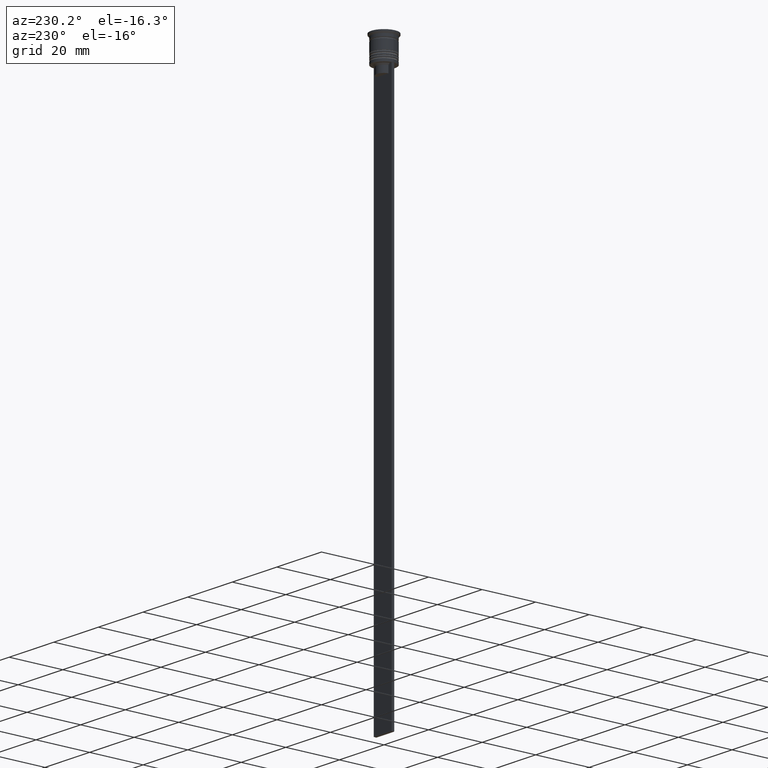
[diagram: clean part render]
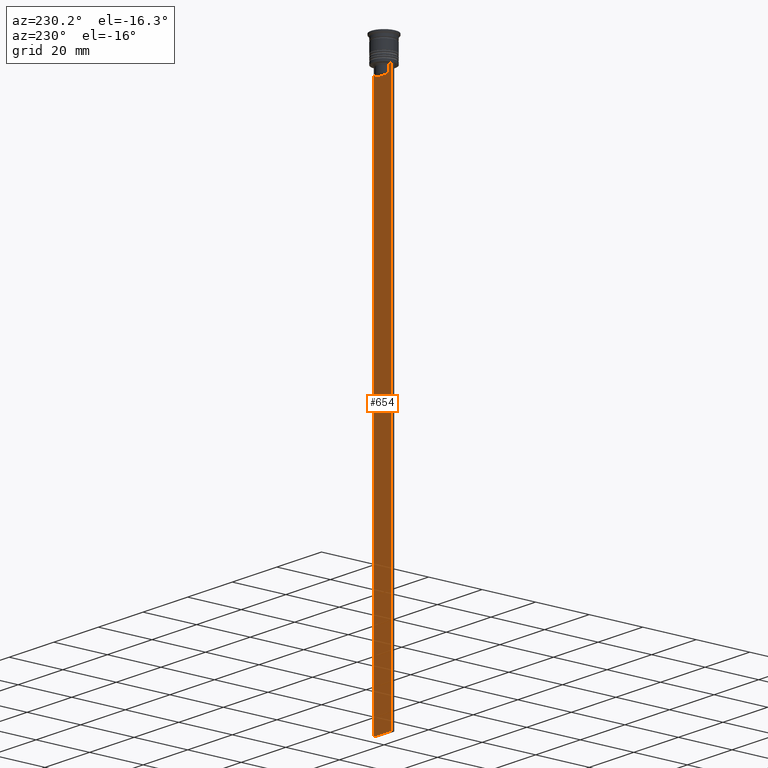
[diagram: same view with one face highlighted and labeled with its STEP entity id]
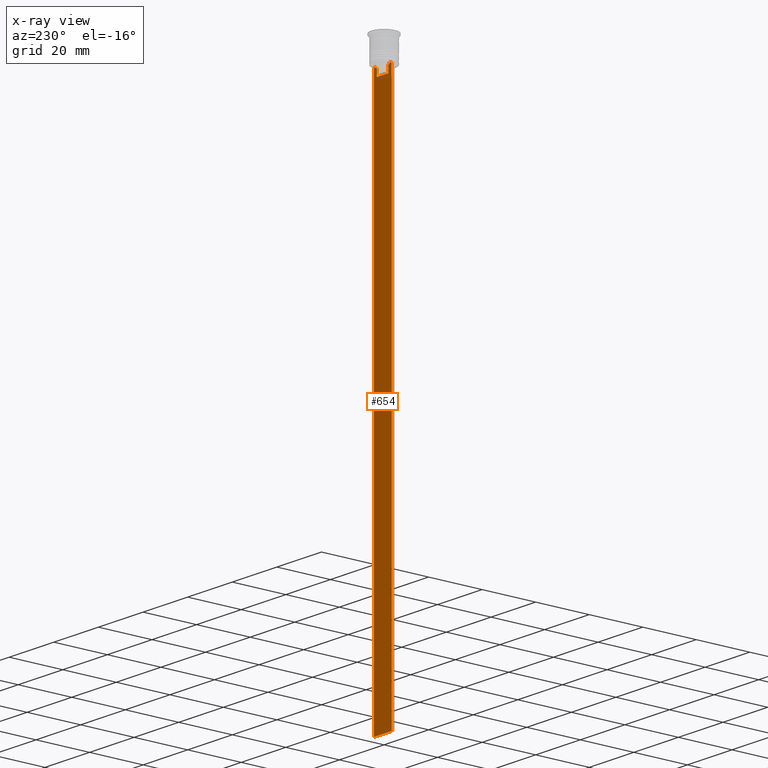
[diagram: x-ray of the same camera — body ghosted, the highlighted face saturated]
A machine part, auxiliary view. The second image highlights one B-rep face of the part: STEP entity #654.
The next image is the same camera in x-ray: the body ghosted, the highlighted face saturated — about 0% of this face is hidden behind the body in this view.
In plain terms, the highlighted planar face has unit normal (0, -1, -0).
Its self-contained STEP definition (entity closure, byte-faithful):
#8 = VERTEX_POINT ( 'NONE', #121 ) ;
#45 = ORIENTED_EDGE ( 'NONE', *, *, #1494, .T. ) ;
#53 = LINE ( 'NONE', #91, #458 ) ;
#75 = ORIENTED_EDGE ( 'NONE', *, *, #1886, .T. ) ;
#76 = ORIENTED_EDGE ( 'NONE', *, *, #974, .T. ) ;
#91 = CARTESIAN_POINT ( 'NONE',  ( 2.602402735934617350, 0.4999999999999995559, 0.000000000000000000 ) ) ;
#110 = EDGE_CURVE ( 'NONE', #775, #828, #867, .T. ) ;
#121 = CARTESIAN_POINT ( 'NONE',  ( 4.000000000000005329, 0.4999999999999995559, -209.5000000000000284 ) ) ;
#139 = VECTOR ( 'NONE', #1841, 1000.000000000000000 ) ;
#150 = CARTESIAN_POINT ( 'NONE',  ( 2.602402735934617350, 0.4999999999999995559, -10.00000000000000178 ) ) ;
#154 = DIRECTION ( 'NONE',  ( 0.000000000000000000, 0.000000000000000000, -1.000000000000000000 ) ) ;
#169 = CARTESIAN_POINT ( 'NONE',  ( -2.941047749529105193, 0.4999999999999995559, -9.666873766989334982 ) ) ;
#177 = CARTESIAN_POINT ( 'NONE',  ( -3.999999999999994671, 0.4999999999999995559, -1.437742251701450202 ) ) ;
#201 = CARTESIAN_POINT ( 'NONE',  ( 4.000000000000005329, 0.4999999999999995559, -1.437742251701450202 ) ) ;
#272 = ORIENTED_EDGE ( 'NONE', *, *, #1306, .T. ) ;
#294 = CARTESIAN_POINT ( 'NONE',  ( 2.602402735934617350, 0.4999999999999995559, -10.00000000000000178 ) ) ;
#302 = CARTESIAN_POINT ( 'NONE',  ( 2.771864055700302476, 0.4999999999999995559, -9.833582414266677674 ) ) ;
#319 = CARTESIAN_POINT ( 'NONE',  ( -2.602402735934617350, 0.4999999999999995559, 0.000000000000000000 ) ) ;
#324 = CARTESIAN_POINT ( 'NONE',  ( -2.771866350855961780, 0.4999999999999995559, -9.833580160334840059 ) ) ;
#327 = VECTOR ( 'NONE', #2303, 1000.000000000000000 ) ;
#370 = VECTOR ( 'NONE', #1014, 1000.000000000000000 ) ;
#448 = EDGE_CURVE ( 'NONE', #1890, #1342, #53, .T. ) ;
#458 = VECTOR ( 'NONE', #823, 1000.000000000000000 ) ;
#493 = CARTESIAN_POINT ( 'NONE',  ( 3.110064308016796897, 0.4999999999999995559, -9.500000000000000000 ) ) ;
#548 = DIRECTION ( 'NONE',  ( 0.000000000000000000, 0.000000000000000000, -1.000000000000000000 ) ) ;
#554 = VERTEX_POINT ( 'NONE', #1223 ) ;
#570 = LINE ( 'NONE', #1748, #370 ) ;
#578 = ORIENTED_EDGE ( 'NONE', *, *, #1669, .T. ) ;
#592 = CARTESIAN_POINT ( 'NONE',  ( 4.000000000000005329, 0.4999999999999995559, -9.500000000000000000 ) ) ;
#628 = VECTOR ( 'NONE', #2368, 1000.000000000000000 ) ;
#645 = ORIENTED_EDGE ( 'NONE', *, *, #110, .T. ) ;
#654 = ADVANCED_FACE ( 'NONE', ( #1104 ), #1670, .F. ) ;
#661 = CARTESIAN_POINT ( 'NONE',  ( 2.941045828809989438, 0.4999999999999995559, -9.666875663357577864 ) ) ;
#685 = VERTEX_POINT ( 'NONE', #592 ) ;
#718 = LINE ( 'NONE', #1985, #2211 ) ;
#770 = ORIENTED_EDGE ( 'NONE', *, *, #2042, .F. ) ;
#775 = VERTEX_POINT ( 'NONE', #1649 ) ;
#804 = VECTOR ( 'NONE', #1605, 1000.000000000000000 ) ;
#814 = LINE ( 'NONE', #2155, #327 ) ;
#823 = DIRECTION ( 'NONE',  ( -0.000000000000000000, -0.000000000000000000, 1.000000000000000000 ) ) ;
#828 = VERTEX_POINT ( 'NONE', #2290 ) ;
#867 = B_SPLINE_CURVE_WITH_KNOTS ( 'NONE', 3,
 ( #889, #169, #324, #2317 ),
 .UNSPECIFIED., .F., .F.,
 ( 4, 4 ),
 ( 0.005378271293598279809, 0.006090816219555997280 ),
 .UNSPECIFIED. ) ;
#876 = ORIENTED_EDGE ( 'NONE', *, *, #448, .T. ) ;
#889 = CARTESIAN_POINT ( 'NONE',  ( -3.110064308016796897, 0.4999999999999995559, -9.500000000000000000 ) ) ;
#929 = CARTESIAN_POINT ( 'NONE',  ( -2.602402735934617350, 0.4999999999999995559, -12.50000000000000000 ) ) ;
#974 = EDGE_CURVE ( 'NONE', #828, #2242, #1591, .T. ) ;
#1014 = DIRECTION ( 'NONE',  ( 1.000000000000000000, 0.000000000000000000, 0.000000000000000000 ) ) ;
#1104 = FACE_OUTER_BOUND ( 'NONE', #2231, .T. ) ;
#1173 = CARTESIAN_POINT ( 'NONE',  ( -3.999999999999994671, 0.4999999999999997780, -9.500000000000000000 ) ) ;
#1223 = CARTESIAN_POINT ( 'NONE',  ( 3.110064308016796897, 0.4999999999999995559, -9.500000000000000000 ) ) ;
#1306 = EDGE_CURVE ( 'NONE', #1342, #554, #1787, .T. ) ;
#1319 = CARTESIAN_POINT ( 'NONE',  ( 4.000000000000005329, 0.4999999999999995559, -209.5000000000000284 ) ) ;
#1342 = VERTEX_POINT ( 'NONE', #294 ) ;
#1431 = LINE ( 'NONE', #177, #2284 ) ;
#1468 = CARTESIAN_POINT ( 'NONE',  ( 0.000000000000000000, 0.4999999999999995559, -12.50000000000000000 ) ) ;
#1477 = LINE ( 'NONE', #1468, #628 ) ;
#1494 = EDGE_CURVE ( 'NONE', #685, #8, #814, .T. ) ;
#1495 = AXIS2_PLACEMENT_3D ( 'NONE', #201, #1681, #548 ) ;
#1591 = LINE ( 'NONE', #319, #804 ) ;
#1601 = ORIENTED_EDGE ( 'NONE', *, *, #1685, .T. ) ;
#1605 = DIRECTION ( 'NONE',  ( 0.000000000000000000, 0.000000000000000000, -1.000000000000000000 ) ) ;
#1649 = CARTESIAN_POINT ( 'NONE',  ( -3.110064308016796897, 0.4999999999999995559, -9.500000000000000000 ) ) ;
#1660 = LINE ( 'NONE', #1319, #139 ) ;
#1669 = EDGE_CURVE ( 'NONE', #554, #685, #718, .T. ) ;
#1670 = PLANE ( 'NONE',  #1495 ) ;
#1681 = DIRECTION ( 'NONE',  ( 0.000000000000000000, -1.000000000000000000, -0.000000000000000000 ) ) ;
#1685 = EDGE_CURVE ( 'NONE', #2242, #1890, #1477, .T. ) ;
#1744 = CARTESIAN_POINT ( 'NONE',  ( -3.999999999999994671, 0.4999999999999995559, -209.5000000000000284 ) ) ;
#1748 = CARTESIAN_POINT ( 'NONE',  ( 4.000000000000005329, 0.4999999999999995559, -9.500000000000000000 ) ) ;
#1787 = B_SPLINE_CURVE_WITH_KNOTS ( 'NONE', 3,
 ( #150, #302, #661, #493 ),
 .UNSPECIFIED., .F., .F.,
 ( 4, 4 ),
 ( 0.01295151922336847637, 0.01367164596165162602 ),
 .UNSPECIFIED. ) ;
#1841 = DIRECTION ( 'NONE',  ( -1.000000000000000000, 0.000000000000000000, 0.000000000000000000 ) ) ;
#1886 = EDGE_CURVE ( 'NONE', #2373, #775, #570, .T. ) ;
#1890 = VERTEX_POINT ( 'NONE', #2270 ) ;
#1985 = CARTESIAN_POINT ( 'NONE',  ( 4.000000000000005329, 0.4999999999999995559, -9.500000000000000000 ) ) ;
#2042 = EDGE_CURVE ( 'NONE', #2373, #2304, #1431, .T. ) ;
#2155 = CARTESIAN_POINT ( 'NONE',  ( 4.000000000000005329, 0.4999999999999995559, -1.437742251701450202 ) ) ;
#2181 = ORIENTED_EDGE ( 'NONE', *, *, #2260, .T. ) ;
#2211 = VECTOR ( 'NONE', #2214, 1000.000000000000000 ) ;
#2214 = DIRECTION ( 'NONE',  ( 1.000000000000000000, 0.000000000000000000, 0.000000000000000000 ) ) ;
#2231 = EDGE_LOOP ( 'NONE', ( #75, #645, #76, #1601, #876, #272, #578, #45, #2181, #770 ) ) ;
#2242 = VERTEX_POINT ( 'NONE', #929 ) ;
#2260 = EDGE_CURVE ( 'NONE', #8, #2304, #1660, .T. ) ;
#2270 = CARTESIAN_POINT ( 'NONE',  ( 2.602402735934617350, 0.4999999999999995559, -12.50000000000000000 ) ) ;
#2284 = VECTOR ( 'NONE', #154, 1000.000000000000000 ) ;
#2290 = CARTESIAN_POINT ( 'NONE',  ( -2.602402735934617350, 0.4999999999999995559, -10.00000000000000178 ) ) ;
#2303 = DIRECTION ( 'NONE',  ( 0.000000000000000000, 0.000000000000000000, -1.000000000000000000 ) ) ;
#2304 = VERTEX_POINT ( 'NONE', #1744 ) ;
#2317 = CARTESIAN_POINT ( 'NONE',  ( -2.602402735934617350, 0.4999999999999995559, -10.00000000000000178 ) ) ;
#2368 = DIRECTION ( 'NONE',  ( 1.000000000000000000, 0.000000000000000000, 0.000000000000000000 ) ) ;
#2373 = VERTEX_POINT ( 'NONE', #1173 ) ;